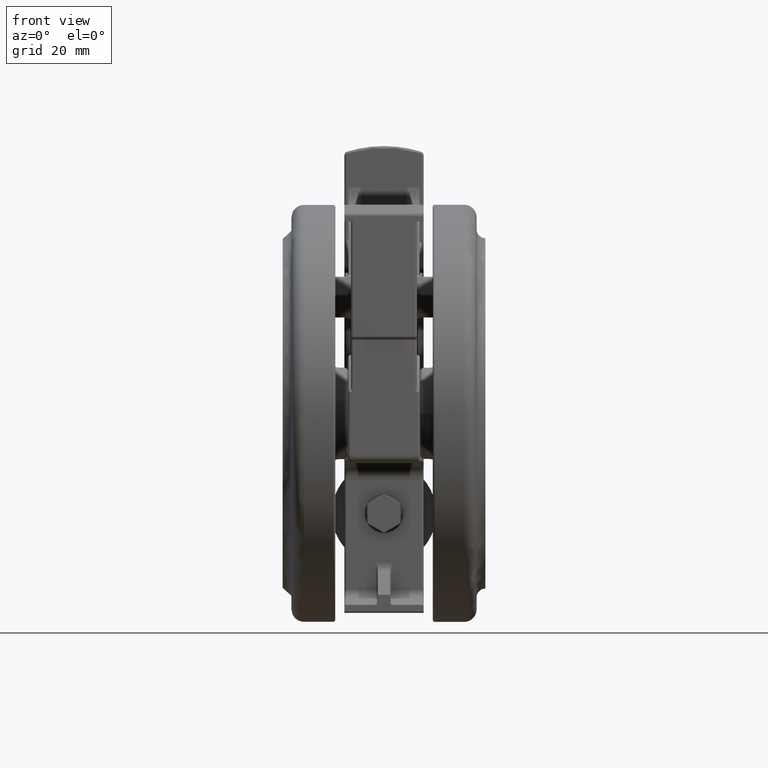
[diagram: clean part render]
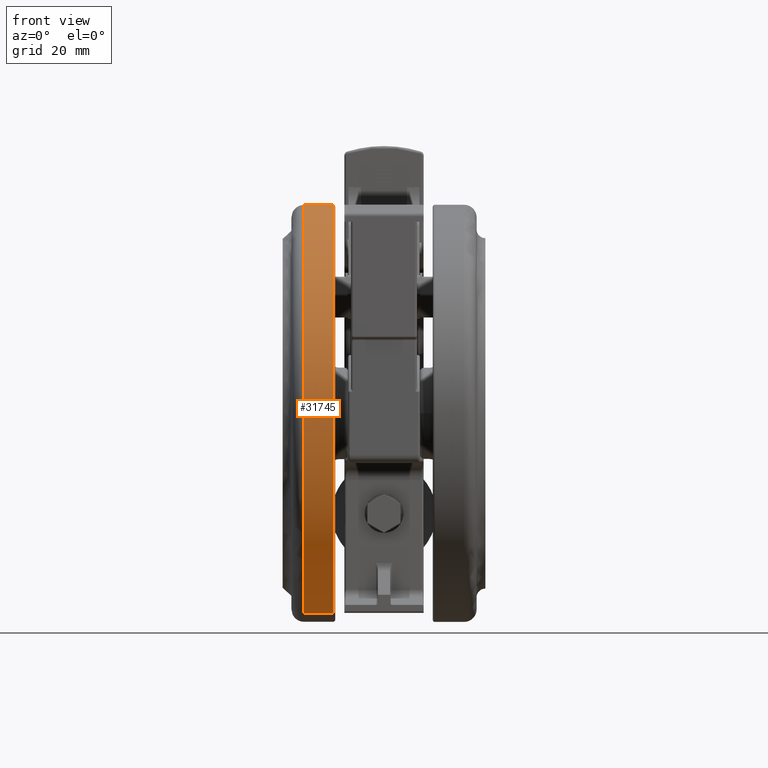
[diagram: same view with one face highlighted and labeled with its STEP entity id]
A machine part, front view. The second image highlights one B-rep face of the part: STEP entity #31745.
In plain terms, the highlighted cylindrical surface (partial cylindrical patch) has radius 50 mm, axis along (-1, 0, -0).
Its self-contained STEP definition (entity closure, byte-faithful):
#1864 = AXIS2_PLACEMENT_3D ( 'NONE', #15765, #42129, #19537 ) ;
#3862 = VERTEX_POINT ( 'NONE', #30814 ) ;
#5548 = CARTESIAN_POINT ( 'NONE',  ( 47.93828856298906500, -14.20987296394987700, -43.50000000000005000 ) ) ;
#7438 = VECTOR ( 'NONE', #8391, 1000.000000000000000 ) ;
#8391 = DIRECTION ( 'NONE',  ( -3.380642383533773200E-017, -2.202247500052102700E-016, -1.000000000000000000 ) ) ;
#8417 = VERTEX_POINT ( 'NONE', #35392 ) ;
#8458 = DIRECTION ( 'NONE',  ( 0.9587657712597809100, -0.2841974592789973700, 0.0000000000000000000 ) ) ;
#8769 = ORIENTED_EDGE ( 'NONE', *, *, #44374, .T. ) ;
#9540 = EDGE_CURVE ( 'NONE', #3862, #30268, #21388, .T. ) ;
#10387 = CARTESIAN_POINT ( 'NONE',  ( 1.421585204616783600E-014, -6.471369879831932500E-015, -36.49999999999994300 ) ) ;
#10895 = EDGE_LOOP ( 'NONE', ( #16614, #28880, #28975, #8769 ) ) ;
#12281 = DIRECTION ( 'NONE',  ( -3.380642383533773200E-017, -2.202247500052102700E-016, -1.000000000000000000 ) ) ;
#14198 = DIRECTION ( 'NONE',  ( 0.9587657712597809100, -0.2841974592789973700, 0.0000000000000000000 ) ) ;
#14499 = VERTEX_POINT ( 'NONE', #5548 ) ;
#14879 = CARTESIAN_POINT ( 'NONE',  ( -47.93828856298907200, 14.20987296394963400, -1046.500000000000000 ) ) ;
#15765 = CARTESIAN_POINT ( 'NONE',  ( 1.397920707932046400E-014, -8.012943129868428100E-015, -43.50000000000005000 ) ) ;
#16614 = ORIENTED_EDGE ( 'NONE', *, *, #9540, .F. ) ;
#16942 = FACE_OUTER_BOUND ( 'NONE', #10895, .T. ) ;
#19537 = DIRECTION ( 'NONE',  ( -0.9587657712597809100, 0.2841974592789973700, 0.0000000000000000000 ) ) ;
#19997 = CIRCLE ( 'NONE', #41990, 50.00000000000000700 ) ;
#20208 = VECTOR ( 'NONE', #30045, 1000.000000000000000 ) ;
#21388 = LINE ( 'NONE', #14879, #20208 ) ;
#21664 = AXIS2_PLACEMENT_3D ( 'NONE', #34862, #12281, #8458 ) ;
#22186 = EDGE_CURVE ( 'NONE', #3862, #8417, #19997, .T. ) ;
#28880 = ORIENTED_EDGE ( 'NONE', *, *, #22186, .T. ) ;
#28975 = ORIENTED_EDGE ( 'NONE', *, *, #38813, .T. ) ;
#30045 = DIRECTION ( 'NONE',  ( -3.380642383533773200E-017, -2.202247500052102700E-016, -1.000000000000000000 ) ) ;
#30268 = VERTEX_POINT ( 'NONE', #48321 ) ;
#30814 = CARTESIAN_POINT ( 'NONE',  ( -47.93828856298903700, 14.20987296394985600, -36.49999999999994300 ) ) ;
#31745 = ADVANCED_FACE ( 'NONE', ( #16942 ), #43463, .T. ) ;
#34795 = CARTESIAN_POINT ( 'NONE',  ( 47.93828856298903000, -14.20987296395009900, -1046.500000000000000 ) ) ;
#34862 = CARTESIAN_POINT ( 'NONE',  ( -1.992863602752327400E-014, -2.288983673850943100E-013, -1046.500000000000000 ) ) ;
#35392 = CARTESIAN_POINT ( 'NONE',  ( 47.93828856298906500, -14.20987296394987700, -36.49999999999994300 ) ) ;
#36774 = DIRECTION ( 'NONE',  ( -3.380642383533773200E-017, -2.202247500052102700E-016, -1.000000000000000000 ) ) ;
#37548 = LINE ( 'NONE', #34795, #7438 ) ;
#38813 = EDGE_CURVE ( 'NONE', #8417, #14499, #37548, .T. ) ;
#41578 = CIRCLE ( 'NONE', #1864, 50.00000000000000700 ) ;
#41990 = AXIS2_PLACEMENT_3D ( 'NONE', #10387, #36774, #14198 ) ;
#42129 = DIRECTION ( 'NONE',  ( 3.380642383533773200E-017, 2.202247500052102700E-016, 1.000000000000000000 ) ) ;
#43463 = CYLINDRICAL_SURFACE ( 'NONE', #21664, 50.00000000000000700 ) ;
#44374 = EDGE_CURVE ( 'NONE', #14499, #30268, #41578, .T. ) ;
#48321 = CARTESIAN_POINT ( 'NONE',  ( -47.93828856298903700, 14.20987296394985600, -43.50000000000005000 ) ) ;